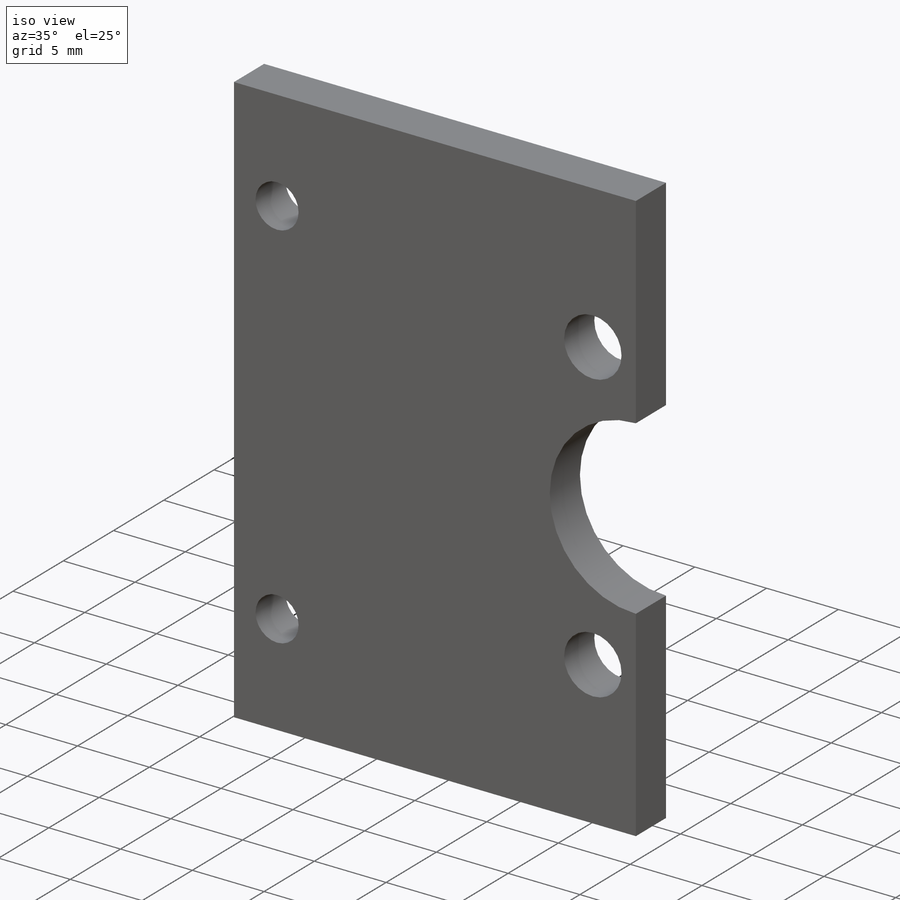
[diagram: iso view]
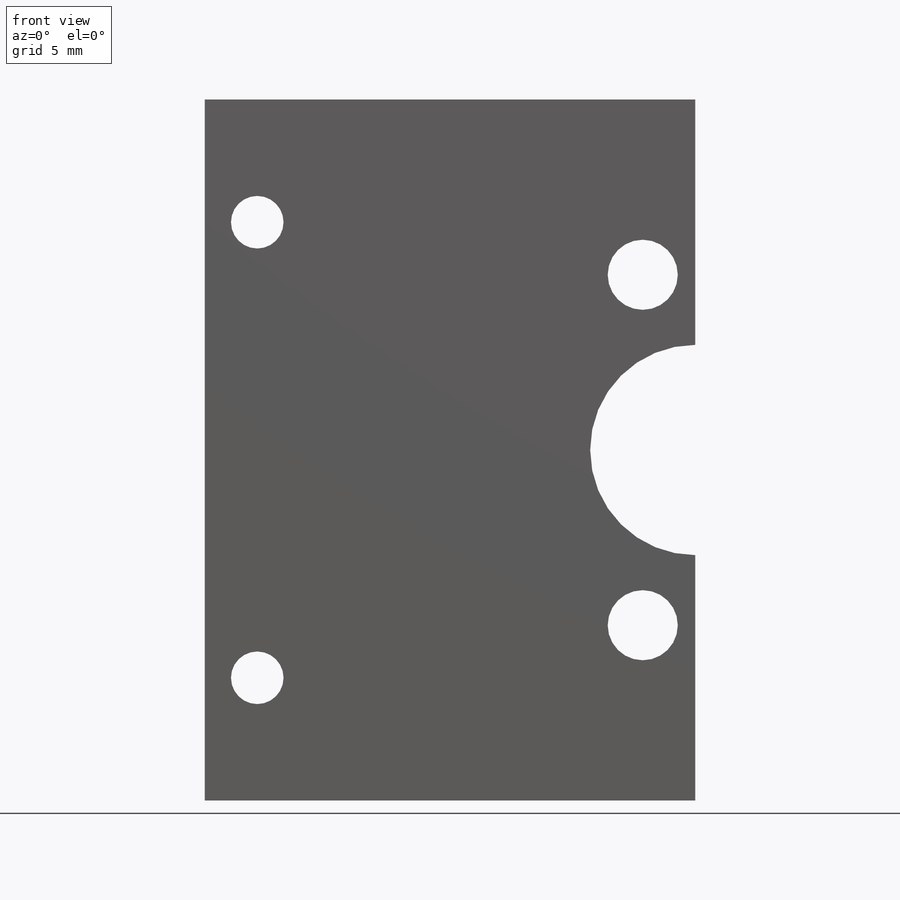
[diagram: front view]
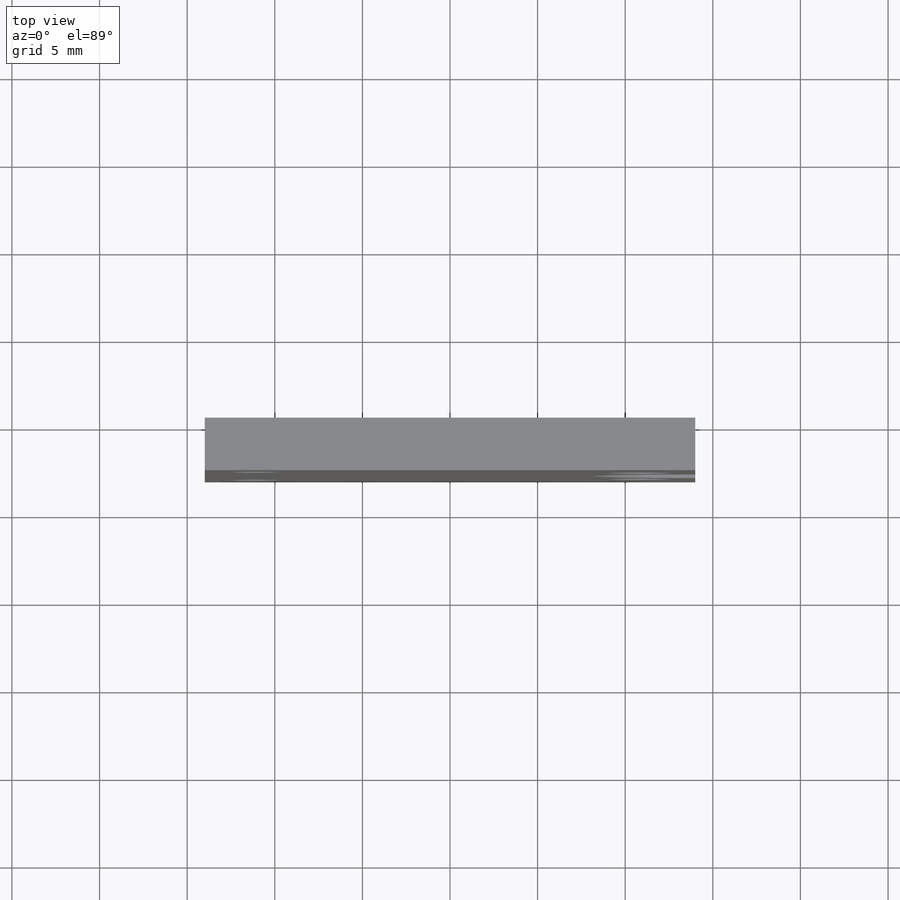
[diagram: top view]
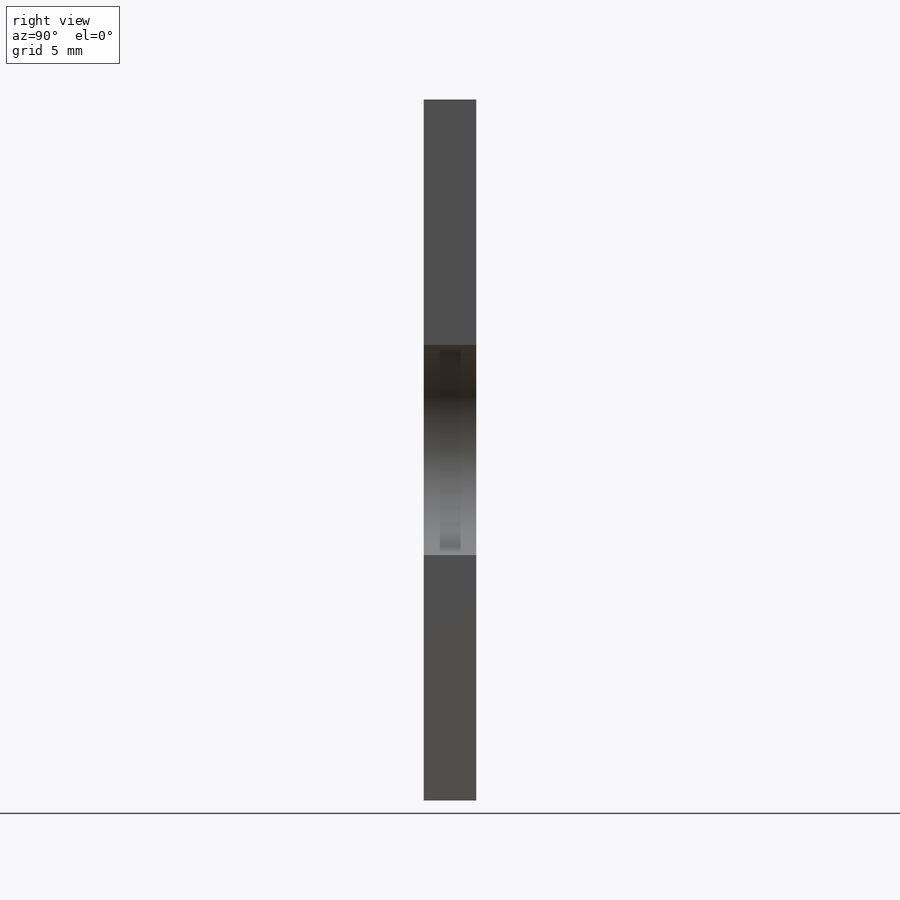
[diagram: right view]
SOLIDWORKS PART (.sldprt)
format: sldprt  version: not decoded by parser v0  size: 343,040 bytes
history: native  units: mm
features: sketch x4, plane x3, cut_extrude x3, mirror x2, material x1, extrude x1 (+10 scaffold rows collapsed)
feature tree (24):
  scaffold x10  (default folders/planes/origin — collapsed)
  material  "Balsa"
  plane  "Plan de face"
  plane  "Plan de dessus"
  plane  "Plan de droite"
  sketch  "Esquisse1"  dims[D1=40.0mm D2=20.0mm D3=28.0mm D4=14.0mm]
  extrude  "Boss.-Extru.1"  Depth=3mm
  sketch  "Esquisse7"  dims[c1.D1=3.0mm c1.D2=3.0mm c1.D3=3.0mm c2.D2=13.0mm c2.D3=11.0mm]
  cut_extrude  "Enlèv. mat.-Extru.6"  Depth=5mm
  mirror  "Symétrie2"
  sketch  "Esquisse8"  dims[c1.D1=4.0mm c1.D2=4.0mm c1.D3=4.0mm c2.D2=10.0mm c2.D3=11.0mm]
  cut_extrude  "Enlèv. mat.-Extru.7"  Depth=10mm
  mirror  "Symétrie3"
  sketch  "Esquisse9"  dims[D1=12.0mm]
  cut_extrude  "Enlèv. mat.-Extru.8"  Depth=10mm
decode coverage: 8 of 10 modeling features carry decoded parameters
note: suppression state not decoded; provenance and decode notes live in map.json
